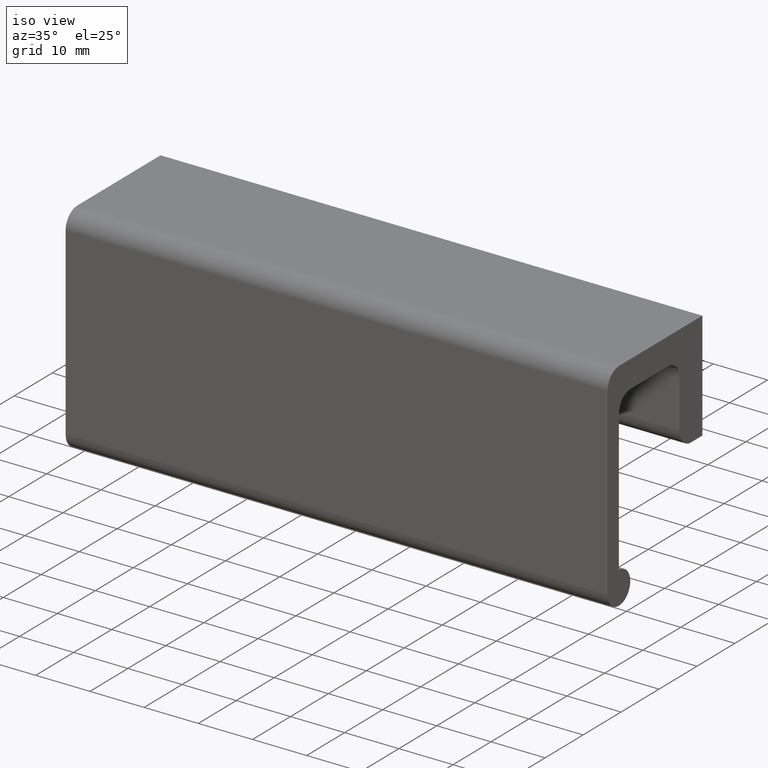
[diagram: clean part render]
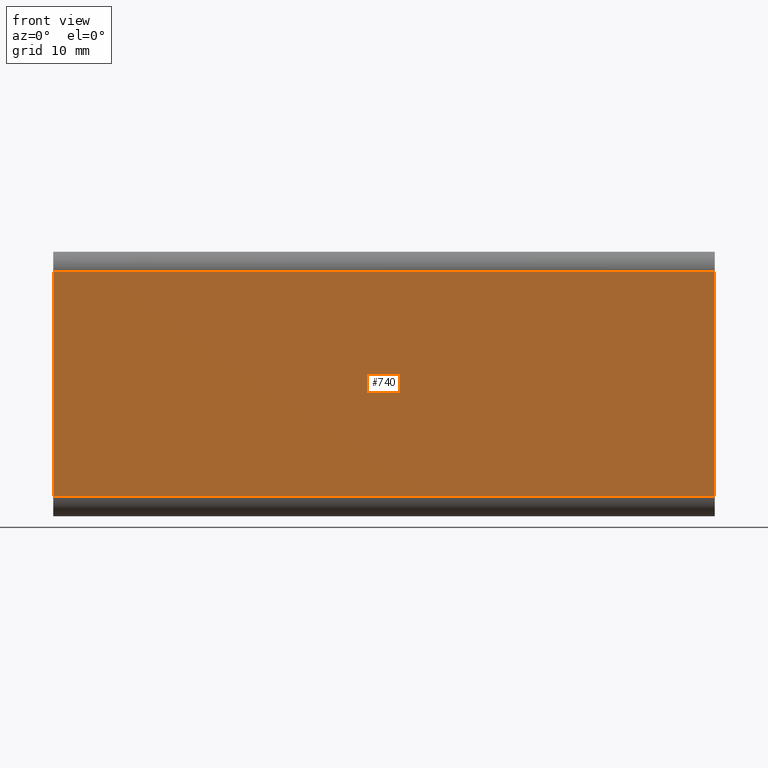
[diagram: tour spotlight — one face highlighted and labeled with its STEP entity id]
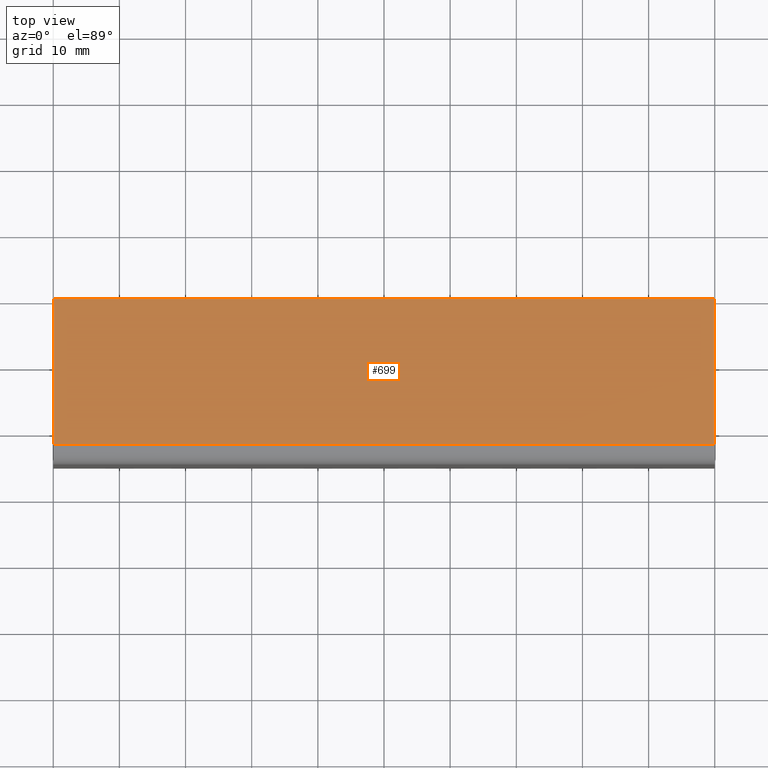
[diagram: tour spotlight — one face highlighted and labeled with its STEP entity id]
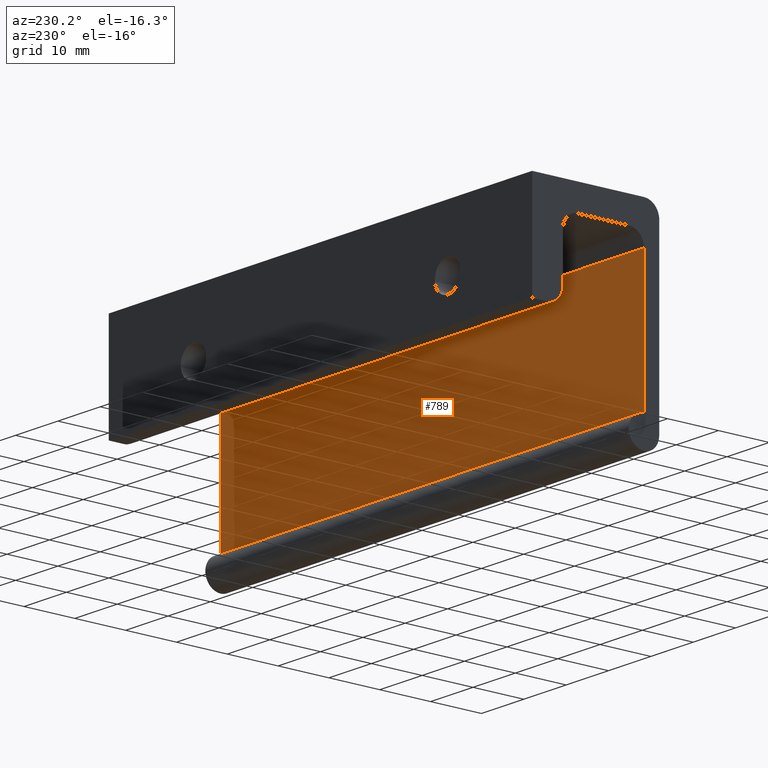
[diagram: tour spotlight — one face highlighted and labeled with its STEP entity id]
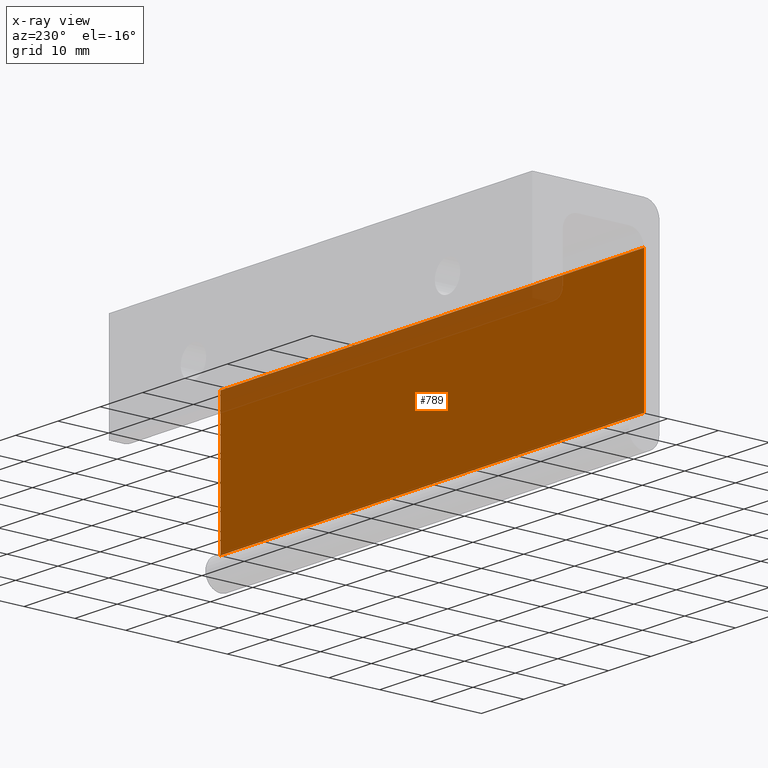
[diagram: x-ray of the same camera — body ghosted, this tour face saturated]
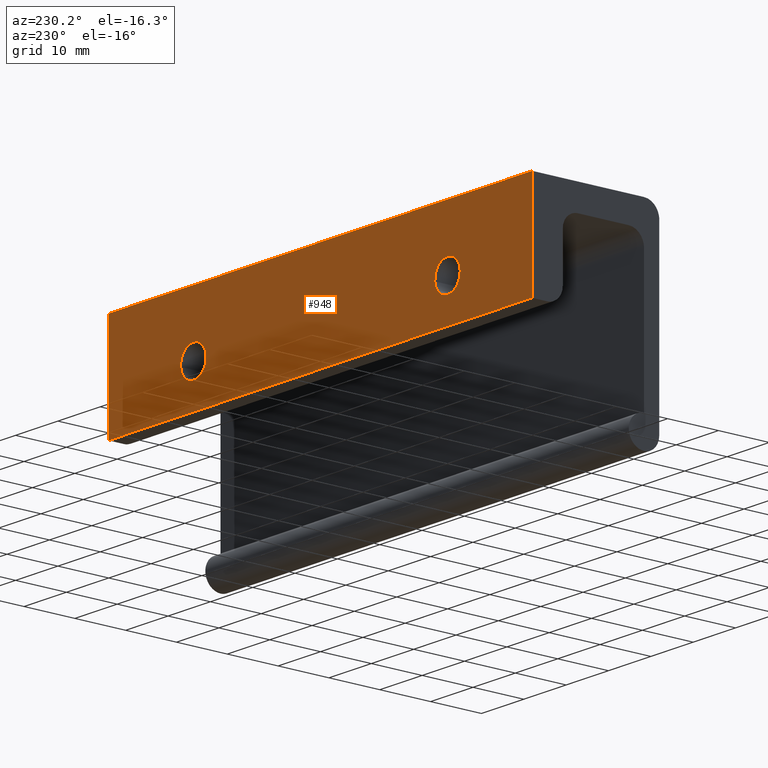
[diagram: tour spotlight — one face highlighted and labeled with its STEP entity id]
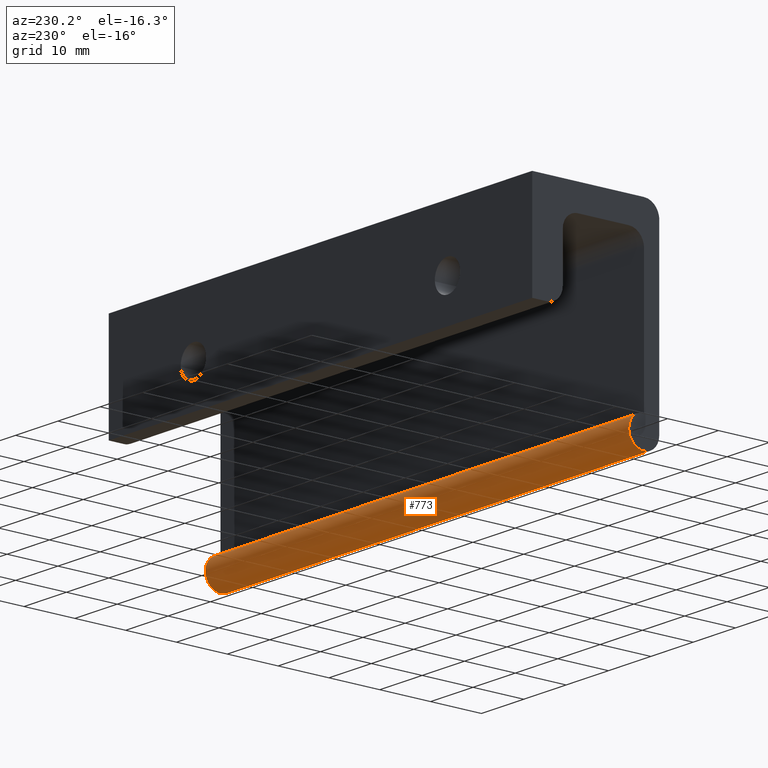
[diagram: tour spotlight — one face highlighted and labeled with its STEP entity id]
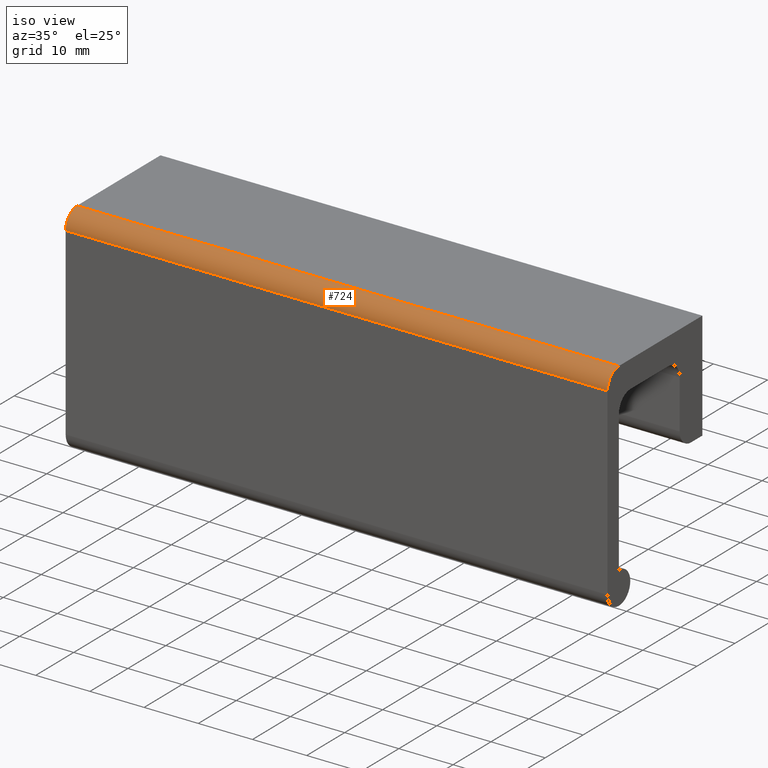
[diagram: tour spotlight — one face highlighted and labeled with its STEP entity id]
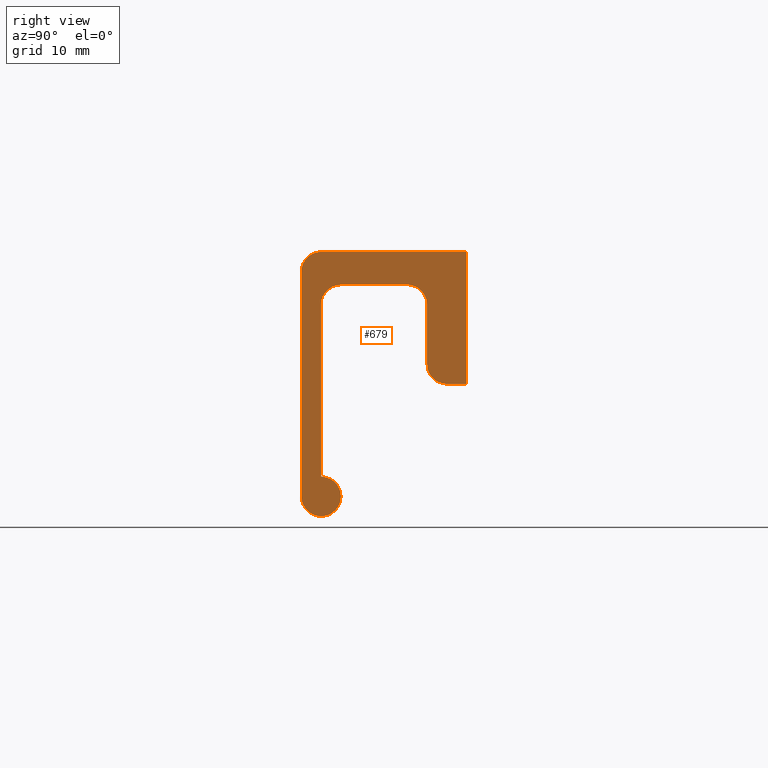
[diagram: tour spotlight — one face highlighted and labeled with its STEP entity id]
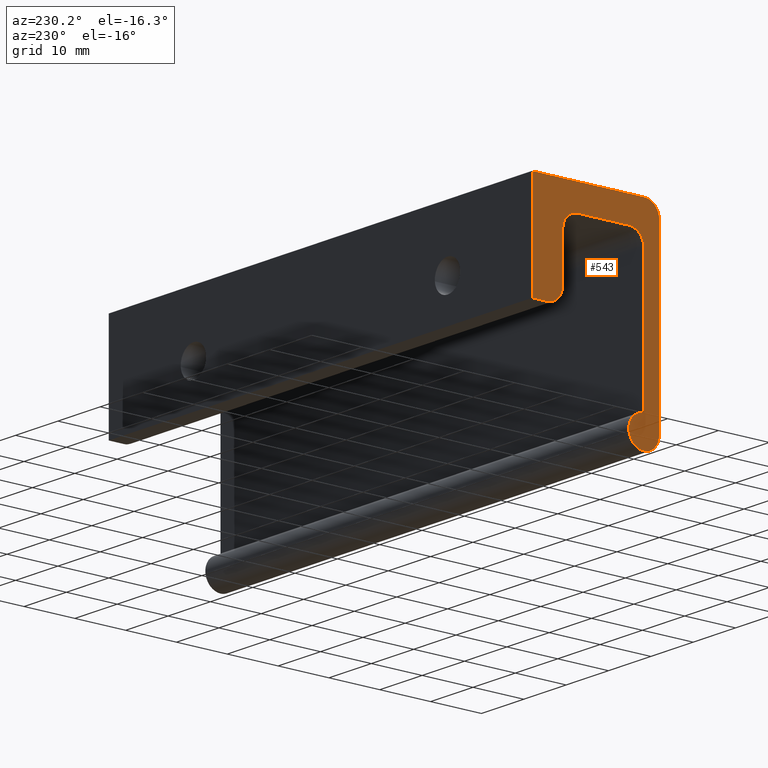
[diagram: tour spotlight — one face highlighted and labeled with its STEP entity id]
A machine part: a face-by-face anatomy tour. The part has 18 B-rep faces; the first image is the clean iso view, then the 8 largest visible faces are spotlighted one at a time (largest first), each with its STEP entity span.

Face 1 — front view, entity #740. In plain terms, the highlighted face is a freeform B-spline surface patch.
Definition (entity closure, byte-faithful):
#495=CARTESIAN_POINT('',(0.0,-25.0,-37.0));
#496=VERTEX_POINT('',#495);
#514=CARTESIAN_POINT('',(0.0,-25.0,-3.0));
#515=VERTEX_POINT('',#514);
#516=CARTESIAN_POINT('',(0.0,-25.0,-37.0));
#517=CARTESIAN_POINT('',(0.0,-25.0,-3.0));
#518=QUASI_UNIFORM_CURVE('',1,(#516,#517),.UNSPECIFIED.,.F.,.U.);
#519=EDGE_CURVE('',#496,#515,#518,.T.);
#565=CARTESIAN_POINT('',(100.0,-25.0,-3.0));
#566=VERTEX_POINT('',#565);
#580=CARTESIAN_POINT('',(100.0,-25.0,-37.0));
#581=VERTEX_POINT('',#580);
#582=CARTESIAN_POINT('',(100.0,-25.0,-37.0));
#583=CARTESIAN_POINT('',(100.0,-25.0,-3.0));
#584=QUASI_UNIFORM_CURVE('',1,(#582,#583),.UNSPECIFIED.,.F.,.U.);
#585=EDGE_CURVE('',#581,#566,#584,.T.);
#715=CARTESIAN_POINT('',(100.0,-25.0,-3.0));
#716=CARTESIAN_POINT('',(0.0,-25.0,-3.0));
#717=QUASI_UNIFORM_CURVE('',1,(#715,#716),.UNSPECIFIED.,.F.,.U.);
#718=EDGE_CURVE('',#566,#515,#717,.T.);
#725=CARTESIAN_POINT('',(-4.994999806180597,-25.0,-1.301700065898595));
#726=CARTESIAN_POINT('',(-4.994999806180597,-25.0,-38.698300846052483));
#727=CARTESIAN_POINT('',(104.995002488389600,-25.0,-1.301700065898595));
#728=CARTESIAN_POINT('',(104.995002488389600,-25.0,-38.698300846052483));
#729=B_SPLINE_SURFACE_WITH_KNOTS('',1,1,((#725,#727),(#726,#728)),.UNSPECIFIED.,.F.,.F.,.U.,(2,2),(2,2),(0.0,37.396600780153882),(0.0,109.990002294570200),.UNSPECIFIED.);
#730=ORIENTED_EDGE('',*,*,#519,.F.);
#731=CARTESIAN_POINT('',(100.0,-25.0,-37.0));
#732=CARTESIAN_POINT('',(0.0,-25.0,-37.0));
#733=QUASI_UNIFORM_CURVE('',1,(#731,#732),.UNSPECIFIED.,.F.,.U.);
#734=EDGE_CURVE('',#581,#496,#733,.T.);
#735=ORIENTED_EDGE('',*,*,#734,.F.);
#736=ORIENTED_EDGE('',*,*,#585,.T.);
#737=ORIENTED_EDGE('',*,*,#718,.T.);
#738=EDGE_LOOP('',(#730,#735,#736,#737));
#739=FACE_OUTER_BOUND('',#738,.T.);
#740=ADVANCED_FACE('',(#739),#729,.T.);

Face 2 — top view, entity #699. In plain terms, the highlighted face is a freeform B-spline surface patch.
Definition (entity closure, byte-faithful):
#413=CARTESIAN_POINT('',(0.0,0.0,0.0));
#414=VERTEX_POINT('',#413);
#521=CARTESIAN_POINT('',(0.0,-22.0,0.0));
#522=VERTEX_POINT('',#521);
#536=CARTESIAN_POINT('',(0.0,-22.0,0.0));
#537=CARTESIAN_POINT('',(0.0,0.0,0.0));
#538=QUASI_UNIFORM_CURVE('',1,(#536,#537),.UNSPECIFIED.,.F.,.U.);
#539=EDGE_CURVE('',#522,#414,#538,.T.);
#549=CARTESIAN_POINT('',(100.0,0.0,0.0));
#550=VERTEX_POINT('',#549);
#558=CARTESIAN_POINT('',(100.0,-22.0,0.0));
#559=VERTEX_POINT('',#558);
#560=CARTESIAN_POINT('',(100.0,-22.0,0.0));
#561=CARTESIAN_POINT('',(100.0,0.0,0.0));
#562=QUASI_UNIFORM_CURVE('',1,(#560,#561),.UNSPECIFIED.,.F.,.U.);
#563=EDGE_CURVE('',#559,#550,#562,.T.);
#680=CARTESIAN_POINT('',(-4.994999806180597,-23.098899957359730,0.0));
#681=CARTESIAN_POINT('',(104.995002488389600,-23.098899957359730,0.0));
#682=CARTESIAN_POINT('',(-4.994999806180597,1.098900547445714,0.0));
#683=CARTESIAN_POINT('',(104.995002488389600,1.098900547445714,0.0));
#684=B_SPLINE_SURFACE_WITH_KNOTS('',1,1,((#680,#682),(#681,#683)),.UNSPECIFIED.,.F.,.F.,.U.,(2,2),(2,2),(0.0,109.990002294570200),(0.0,24.197800504805439),.UNSPECIFIED.);
#685=ORIENTED_EDGE('',*,*,#539,.F.);
#686=CARTESIAN_POINT('',(100.0,-22.0,0.0));
#687=CARTESIAN_POINT('',(0.0,-22.0,0.0));
#688=QUASI_UNIFORM_CURVE('',1,(#686,#687),.UNSPECIFIED.,.F.,.U.);
#689=EDGE_CURVE('',#559,#522,#688,.T.);
#690=ORIENTED_EDGE('',*,*,#689,.F.);
#691=ORIENTED_EDGE('',*,*,#563,.T.);
#692=CARTESIAN_POINT('',(100.0,0.0,0.0));
#693=CARTESIAN_POINT('',(0.0,0.0,0.0));
#694=QUASI_UNIFORM_CURVE('',1,(#692,#693),.UNSPECIFIED.,.F.,.U.);
#695=EDGE_CURVE('',#550,#414,#694,.T.);
#696=ORIENTED_EDGE('',*,*,#695,.T.);
#697=EDGE_LOOP('',(#685,#690,#691,#696));
#698=FACE_OUTER_BOUND('',#697,.T.);
#699=ADVANCED_FACE('',(#698),#684,.T.);

Face 3 — auxiliary view, entity #789. An x-ray twin of the same camera follows (body ghosted, this face saturated) — the face is partly hidden behind the body. In plain terms, the highlighted face is a freeform B-spline surface patch.
Definition (entity closure, byte-faithful):
#473=CARTESIAN_POINT('',(0.0,-22.0,-8.0));
#474=VERTEX_POINT('',#473);
#488=CARTESIAN_POINT('',(0.0,-22.0,-34.0));
#489=VERTEX_POINT('',#488);
#490=CARTESIAN_POINT('',(0.0,-22.0,-8.0));
#491=CARTESIAN_POINT('',(0.0,-22.0,-34.0));
#492=QUASI_UNIFORM_CURVE('',1,(#490,#491),.UNSPECIFIED.,.F.,.U.);
#493=EDGE_CURVE('',#474,#489,#492,.T.);
#587=CARTESIAN_POINT('',(100.0,-22.0,-34.0));
#588=VERTEX_POINT('',#587);
#606=CARTESIAN_POINT('',(100.0,-22.0,-8.0));
#607=VERTEX_POINT('',#606);
#608=CARTESIAN_POINT('',(100.0,-22.0,-8.0));
#609=CARTESIAN_POINT('',(100.0,-22.0,-34.0));
#610=QUASI_UNIFORM_CURVE('',1,(#608,#609),.UNSPECIFIED.,.F.,.U.);
#611=EDGE_CURVE('',#607,#588,#610,.T.);
#764=CARTESIAN_POINT('',(100.0,-22.0,-34.0));
#765=CARTESIAN_POINT('',(0.0,-22.0,-34.0));
#766=QUASI_UNIFORM_CURVE('',1,(#764,#765),.UNSPECIFIED.,.F.,.U.);
#767=EDGE_CURVE('',#588,#489,#766,.T.);
#774=CARTESIAN_POINT('',(-4.994999806180597,-22.0,-35.298699949606963));
#775=CARTESIAN_POINT('',(-4.994999806180597,-22.0,-6.701299353018701));
#776=CARTESIAN_POINT('',(104.995002488389600,-22.0,-35.298699949606963));
#777=CARTESIAN_POINT('',(104.995002488389600,-22.0,-6.701299353018701));
#778=B_SPLINE_SURFACE_WITH_KNOTS('',1,1,((#774,#776),(#775,#777)),.UNSPECIFIED.,.F.,.F.,.U.,(2,2),(2,2),(0.0,28.597400596588258),(0.0,109.990002294570200),.UNSPECIFIED.);
#779=ORIENTED_EDGE('',*,*,#493,.F.);
#780=CARTESIAN_POINT('',(100.0,-22.0,-8.0));
#781=CARTESIAN_POINT('',(0.0,-22.0,-8.0));
#782=QUASI_UNIFORM_CURVE('',1,(#780,#781),.UNSPECIFIED.,.F.,.U.);
#783=EDGE_CURVE('',#607,#474,#782,.T.);
#784=ORIENTED_EDGE('',*,*,#783,.F.);
#785=ORIENTED_EDGE('',*,*,#611,.T.);
#786=ORIENTED_EDGE('',*,*,#767,.T.);
#787=EDGE_LOOP('',(#779,#784,#785,#786));
#788=FACE_OUTER_BOUND('',#787,.T.);
#789=ADVANCED_FACE('',(#788),#778,.T.);

Face 4 — auxiliary view, entity #948. In plain terms, the highlighted face is a freeform B-spline surface patch.
Definition (entity closure, byte-faithful):
#79=CARTESIAN_POINT('',(77.009247998837708,1.665335E-016,-11.764622712345099));
#80=VERTEX_POINT('',#79);
#86=CARTESIAN_POINT('',(80.0,0.0,-9.000000000000002));
#87=VERTEX_POINT('',#86);
#88=CARTESIAN_POINT('',(80.0,0.0,-9.000000000000002));
#89=CARTESIAN_POINT('',(77.226828525902263,0.0,-9.000000000000004));
#90=CARTESIAN_POINT('',(77.009247998837708,1.665335E-016,-11.764622712345096));
#98=(BOUNDED_CURVE()B_SPLINE_CURVE(2,(#88,#89,#90),.UNSPECIFIED.,.F.,.U.)B_SPLINE_CURVE_WITH_KNOTS((3,3),(0.0,0.236331300578731),.UNSPECIFIED.)CURVE()GEOMETRIC_REPRESENTATION_ITEM()RATIONAL_B_SPLINE_CURVE((1.0,0.723120658668504,0.969723356059047))REPRESENTATION_ITEM(''));
#99=EDGE_CURVE('',#87,#80,#98,.T.);
#101=CARTESIAN_POINT('',(82.990752001162292,1.665335E-016,-12.235377287654901));
#102=VERTEX_POINT('',#101);
#103=CARTESIAN_POINT('',(82.990752001162292,1.665335E-016,-12.235377287654906));
#104=CARTESIAN_POINT('',(83.0,0.0,-12.117870321496570));
#105=CARTESIAN_POINT('',(83.0,0.0,-12.0));
#106=CARTESIAN_POINT('',(83.0,0.0,-9.000000000000002));
#107=CARTESIAN_POINT('',(80.0,0.0,-9.000000000000002));
#115=(BOUNDED_CURVE()B_SPLINE_CURVE(2,(#103,#104,#105,#106,#107),.UNSPECIFIED.,.F.,.U.)B_SPLINE_CURVE_WITH_KNOTS((3,2,3),(0.736331300578731,0.750000000000000,1.0),.UNSPECIFIED.)CURVE()GEOMETRIC_REPRESENTATION_ITEM()RATIONAL_B_SPLINE_CURVE((0.969723356059047,0.983986122518044,1.0,0.707106781186548,1.0))REPRESENTATION_ITEM(''));
#116=EDGE_CURVE('',#102,#87,#115,.T.);
#192=CARTESIAN_POINT('',(80.0,0.0,-15.0));
#193=VERTEX_POINT('',#192);
#194=CARTESIAN_POINT('',(80.0,0.0,-15.0));
#195=CARTESIAN_POINT('',(82.773171474097779,0.0,-15.000000000000004));
#196=CARTESIAN_POINT('',(82.990752001162292,1.665335E-016,-12.235377287654902));
#204=(BOUNDED_CURVE()B_SPLINE_CURVE(2,(#194,#195,#196),.UNSPECIFIED.,.F.,.U.)B_SPLINE_CURVE_WITH_KNOTS((3,3),(0.500000000000000,0.736331300578732),.UNSPECIFIED.)CURVE()GEOMETRIC_REPRESENTATION_ITEM()RATIONAL_B_SPLINE_CURVE((1.0,0.723120658668503,0.969723356059048))REPRESENTATION_ITEM(''));
#205=EDGE_CURVE('',#193,#102,#204,.T.);
#207=CARTESIAN_POINT('',(77.009247998837708,1.665335E-016,-11.764622712345096));
#208=CARTESIAN_POINT('',(77.0,0.0,-11.882129678503441));
#209=CARTESIAN_POINT('',(77.0,0.0,-12.0));
#210=CARTESIAN_POINT('',(77.000000000000014,0.0,-14.999999999999995));
#211=CARTESIAN_POINT('',(80.0,0.0,-15.0));
#219=(BOUNDED_CURVE()B_SPLINE_CURVE(2,(#207,#208,#209,#210,#211),.UNSPECIFIED.,.F.,.U.)B_SPLINE_CURVE_WITH_KNOTS((3,2,3),(0.236331300578731,0.250000000000000,0.500000000000000),.UNSPECIFIED.)CURVE()GEOMETRIC_REPRESENTATION_ITEM()RATIONAL_B_SPLINE_CURVE((0.969723356059047,0.983986122518044,1.0,0.707106781186548,1.0))REPRESENTATION_ITEM(''));
#220=EDGE_CURVE('',#80,#193,#219,.T.);
#261=CARTESIAN_POINT('',(17.009247998837719,1.665335E-016,-11.764622712345099));
#262=VERTEX_POINT('',#261);
#268=CARTESIAN_POINT('',(20.0,0.0,-9.000000000000002));
#269=VERTEX_POINT('',#268);
#270=CARTESIAN_POINT('',(20.0,0.0,-9.000000000000002));
#271=CARTESIAN_POINT('',(17.226828525902228,0.0,-9.000000000000002));
#272=CARTESIAN_POINT('',(17.009247998837715,1.665335E-016,-11.764622712345096));
#280=(BOUNDED_CURVE()B_SPLINE_CURVE(2,(#270,#271,#272),.UNSPECIFIED.,.F.,.U.)B_SPLINE_CURVE_WITH_KNOTS((3,3),(0.0,0.236331300578731),.UNSPECIFIED.)CURVE()GEOMETRIC_REPRESENTATION_ITEM()RATIONAL_B_SPLINE_CURVE((1.0,0.723120658668504,0.969723356059047))REPRESENTATION_ITEM(''));
#281=EDGE_CURVE('',#269,#262,#280,.T.);
#283=CARTESIAN_POINT('',(22.990752001162289,1.665335E-016,-12.235377287654901));
#284=VERTEX_POINT('',#283);
#285=CARTESIAN_POINT('',(22.990752001162285,1.665335E-016,-12.235377287654906));
#286=CARTESIAN_POINT('',(23.000000000000007,0.0,-12.117870321496570));
#287=CARTESIAN_POINT('',(23.0,0.0,-12.0));
#288=CARTESIAN_POINT('',(22.999999999999993,0.0,-9.000000000000002));
#289=CARTESIAN_POINT('',(20.0,0.0,-9.000000000000002));
#297=(BOUNDED_CURVE()B_SPLINE_CURVE(2,(#285,#286,#287,#288,#289),.UNSPECIFIED.,.F.,.U.)B_SPLINE_CURVE_WITH_KNOTS((3,2,3),(0.736331300578731,0.750000000000000,1.0),.UNSPECIFIED.)CURVE()GEOMETRIC_REPRESENTATION_ITEM()RATIONAL_B_SPLINE_CURVE((0.969723356059047,0.983986122518044,1.0,0.707106781186548,1.0))REPRESENTATION_ITEM(''));
#298=EDGE_CURVE('',#284,#269,#297,.T.);
#374=CARTESIAN_POINT('',(20.0,0.0,-15.0));
#375=VERTEX_POINT('',#374);
#376=CARTESIAN_POINT('',(20.0,0.0,-15.0));
#377=CARTESIAN_POINT('',(22.773171474097772,0.0,-15.000000000000004));
#378=CARTESIAN_POINT('',(22.990752001162289,1.665335E-016,-12.235377287654902));
#386=(BOUNDED_CURVE()B_SPLINE_CURVE(2,(#376,#377,#378),.UNSPECIFIED.,.F.,.U.)B_SPLINE_CURVE_WITH_KNOTS((3,3),(0.500000000000000,0.736331300578732),.UNSPECIFIED.)CURVE()GEOMETRIC_REPRESENTATION_ITEM()RATIONAL_B_SPLINE_CURVE((1.0,0.723120658668503,0.969723356059048))REPRESENTATION_ITEM(''));
#387=EDGE_CURVE('',#375,#284,#386,.T.);
#389=CARTESIAN_POINT('',(17.009247998837715,1.665335E-016,-11.764622712345096));
#390=CARTESIAN_POINT('',(16.999999999999996,0.0,-11.882129678503441));
#391=CARTESIAN_POINT('',(17.0,0.0,-12.0));
#392=CARTESIAN_POINT('',(17.000000000000004,0.0,-14.999999999999995));
#393=CARTESIAN_POINT('',(20.0,0.0,-15.0));
#401=(BOUNDED_CURVE()B_SPLINE_CURVE(2,(#389,#390,#391,#392,#393),.UNSPECIFIED.,.F.,.U.)B_SPLINE_CURVE_WITH_KNOTS((3,2,3),(0.236331300578731,0.250000000000000,0.500000000000000),.UNSPECIFIED.)CURVE()GEOMETRIC_REPRESENTATION_ITEM()RATIONAL_B_SPLINE_CURVE((0.969723356059047,0.983986122518044,1.0,0.707106781186548,1.0))REPRESENTATION_ITEM(''));
#402=EDGE_CURVE('',#262,#375,#401,.T.);
#413=CARTESIAN_POINT('',(0.0,0.0,0.0));
#414=VERTEX_POINT('',#413);
#415=CARTESIAN_POINT('',(0.0,0.0,-20.0));
#416=VERTEX_POINT('',#415);
#417=CARTESIAN_POINT('',(0.0,0.0,0.0));
#418=CARTESIAN_POINT('',(0.0,0.0,-20.0));
#419=QUASI_UNIFORM_CURVE('',1,(#417,#418),.UNSPECIFIED.,.F.,.U.);
#420=EDGE_CURVE('',#414,#416,#419,.T.);
#549=CARTESIAN_POINT('',(100.0,0.0,0.0));
#550=VERTEX_POINT('',#549);
#551=CARTESIAN_POINT('',(100.0,0.0,-20.0));
#552=VERTEX_POINT('',#551);
#553=CARTESIAN_POINT('',(100.0,0.0,0.0));
#554=CARTESIAN_POINT('',(100.0,0.0,-20.0));
#555=QUASI_UNIFORM_CURVE('',1,(#553,#554),.UNSPECIFIED.,.F.,.U.);
#556=EDGE_CURVE('',#550,#552,#555,.T.);
#692=CARTESIAN_POINT('',(100.0,0.0,0.0));
#693=CARTESIAN_POINT('',(0.0,0.0,0.0));
#694=QUASI_UNIFORM_CURVE('',1,(#692,#693),.UNSPECIFIED.,.F.,.U.);
#695=EDGE_CURVE('',#550,#414,#694,.T.);
#891=CARTESIAN_POINT('',(100.0,0.0,-20.0));
#892=CARTESIAN_POINT('',(0.0,0.0,-20.0));
#893=QUASI_UNIFORM_CURVE('',1,(#891,#892),.UNSPECIFIED.,.F.,.U.);
#894=EDGE_CURVE('',#552,#416,#893,.T.);
#925=CARTESIAN_POINT('',(-4.994999806180597,0.0,-20.998999961236120));
#926=CARTESIAN_POINT('',(-4.994999806180597,0.0,0.999000497677922));
#927=CARTESIAN_POINT('',(104.995002488389600,0.0,-20.998999961236120));
#928=CARTESIAN_POINT('',(104.995002488389600,0.0,0.999000497677922));
#929=B_SPLINE_SURFACE_WITH_KNOTS('',1,1,((#925,#927),(#926,#928)),.UNSPECIFIED.,.F.,.F.,.U.,(2,2),(2,2),(0.0,21.998000458914039),(0.0,109.990002294570200),.UNSPECIFIED.);
#930=ORIENTED_EDGE('',*,*,#420,.F.);
#931=ORIENTED_EDGE('',*,*,#695,.F.);
#932=ORIENTED_EDGE('',*,*,#556,.T.);
#933=ORIENTED_EDGE('',*,*,#894,.T.);
#934=EDGE_LOOP('',(#930,#931,#932,#933));
#935=FACE_OUTER_BOUND('',#934,.T.);
#936=ORIENTED_EDGE('',*,*,#387,.T.);
#937=ORIENTED_EDGE('',*,*,#298,.T.);
#938=ORIENTED_EDGE('',*,*,#281,.T.);
#939=ORIENTED_EDGE('',*,*,#402,.T.);
#940=EDGE_LOOP('',(#936,#937,#938,#939));
#941=FACE_BOUND('',#940,.T.);
#942=ORIENTED_EDGE('',*,*,#205,.T.);
#943=ORIENTED_EDGE('',*,*,#116,.T.);
#944=ORIENTED_EDGE('',*,*,#99,.T.);
#945=ORIENTED_EDGE('',*,*,#220,.T.);
#946=EDGE_LOOP('',(#942,#943,#944,#945));
#947=FACE_BOUND('',#946,.T.);
#948=ADVANCED_FACE('',(#935,#941,#947),#929,.T.);

Face 5 — auxiliary view, entity #773. In plain terms, the highlighted face is a freeform B-spline surface patch.
Definition (entity closure, byte-faithful):
#488=CARTESIAN_POINT('',(0.0,-22.0,-34.0));
#489=VERTEX_POINT('',#488);
#495=CARTESIAN_POINT('',(0.0,-25.0,-37.0));
#496=VERTEX_POINT('',#495);
#497=CARTESIAN_POINT('',(0.0,-25.0,-37.0));
#498=CARTESIAN_POINT('',(0.0,-25.0,-39.999999999999993));
#499=CARTESIAN_POINT('',(0.0,-22.0,-40.0));
#500=CARTESIAN_POINT('',(0.0,-18.999999999999993,-39.999999999999993));
#501=CARTESIAN_POINT('',(0.0,-19.0,-37.0));
#502=CARTESIAN_POINT('',(0.0,-18.999999999999993,-33.999999999999993));
#503=CARTESIAN_POINT('',(0.0,-22.0,-33.999999999999993));
#511=(BOUNDED_CURVE()B_SPLINE_CURVE(2,(#497,#498,#499,#500,#501,#502,#503),.UNSPECIFIED.,.F.,.U.)B_SPLINE_CURVE_WITH_KNOTS((3,2,2,3),(0.0,0.333333333333333,0.666666666666667,1.0),.UNSPECIFIED.)CURVE()GEOMETRIC_REPRESENTATION_ITEM()RATIONAL_B_SPLINE_CURVE((1.0,0.707106781186548,1.0,0.707106781186548,1.0,0.707106781186548,1.0))REPRESENTATION_ITEM(''));
#512=EDGE_CURVE('',#496,#489,#511,.T.);
#580=CARTESIAN_POINT('',(100.0,-25.0,-37.0));
#581=VERTEX_POINT('',#580);
#587=CARTESIAN_POINT('',(100.0,-22.0,-34.0));
#588=VERTEX_POINT('',#587);
#589=CARTESIAN_POINT('',(100.0,-25.0,-37.0));
#590=CARTESIAN_POINT('',(100.0,-25.0,-39.999999999999993));
#591=CARTESIAN_POINT('',(100.0,-22.0,-40.0));
#592=CARTESIAN_POINT('',(100.0,-18.999999999999993,-39.999999999999993));
#593=CARTESIAN_POINT('',(100.0,-19.0,-37.0));
#594=CARTESIAN_POINT('',(100.0,-18.999999999999993,-33.999999999999993));
#595=CARTESIAN_POINT('',(100.0,-22.0,-33.999999999999993));
#603=(BOUNDED_CURVE()B_SPLINE_CURVE(2,(#589,#590,#591,#592,#593,#594,#595),.UNSPECIFIED.,.F.,.U.)B_SPLINE_CURVE_WITH_KNOTS((3,2,2,3),(0.0,0.333333333333333,0.666666666666667,1.0),.UNSPECIFIED.)CURVE()GEOMETRIC_REPRESENTATION_ITEM()RATIONAL_B_SPLINE_CURVE((1.0,0.707106781186548,1.0,0.707106781186548,1.0,0.707106781186548,1.0))REPRESENTATION_ITEM(''));
#604=EDGE_CURVE('',#581,#588,#603,.T.);
#731=CARTESIAN_POINT('',(100.0,-25.0,-37.0));
#732=CARTESIAN_POINT('',(0.0,-25.0,-37.0));
#733=QUASI_UNIFORM_CURVE('',1,(#731,#732),.UNSPECIFIED.,.F.,.U.);
#734=EDGE_CURVE('',#581,#496,#733,.T.);
#741=CARTESIAN_POINT('',(102.500000000000000,-24.998971974926668,-36.921469155076380));
#742=CARTESIAN_POINT('',(-2.562500000000000,-24.998971974926668,-36.921469155076380));
#743=CARTESIAN_POINT('',(102.500000000000010,-25.080293045412670,-40.026995545321313));
#744=CARTESIAN_POINT('',(-2.562500000000000,-25.080293045412670,-40.026995545321313));
#745=CARTESIAN_POINT('',(102.500000000000000,-21.973820393504891,-39.999885769192517));
#746=CARTESIAN_POINT('',(-2.562500000000000,-21.973820393504891,-39.999885769192517));
#747=CARTESIAN_POINT('',(102.500000000000010,-18.867347741597108,-39.972775993063713));
#748=CARTESIAN_POINT('',(-2.562500000000000,-18.867347741597108,-39.972775993063713));
#749=CARTESIAN_POINT('',(102.500000000000000,-19.002855335254431,-36.869141837904003));
#750=CARTESIAN_POINT('',(-2.562500000000000,-19.002855335254431,-36.869141837904003));
#751=CARTESIAN_POINT('',(102.500000000000010,-19.138362928911764,-33.765507682744300));
#752=CARTESIAN_POINT('',(-2.562500000000000,-19.138362928911764,-33.765507682744300));
#753=CARTESIAN_POINT('',(102.500000000000000,-22.235377287183528,-34.009247998800632));
#754=CARTESIAN_POINT('',(-2.562500000000000,-22.235377287183528,-34.009247998800632));
#762=(BOUNDED_SURFACE()B_SPLINE_SURFACE(1,2,((#741,#743,#745,#747,#749,#751,#753),(#742,#744,#746,#748,#750,#752,#754)),.UNSPECIFIED.,.F.,.F.,.U.)B_SPLINE_SURFACE_WITH_KNOTS((2,2),(3,2,2,3),(0.0,105.062500000000000),(0.0,5.093697794515248,10.187395589030499,15.281093383545750),.UNSPECIFIED.)GEOMETRIC_REPRESENTATION_ITEM()RATIONAL_B_SPLINE_SURFACE(((1.0,0.694658370458997,1.0,0.694658370458997,1.0,0.694658370458997,1.0),(1.0,0.694658370458997,1.0,0.694658370458997,1.0,0.694658370458997,1.0)))REPRESENTATION_ITEM('')SURFACE());
#763=ORIENTED_EDGE('',*,*,#512,.T.);
#764=CARTESIAN_POINT('',(100.0,-22.0,-34.0));
#765=CARTESIAN_POINT('',(0.0,-22.0,-34.0));
#766=QUASI_UNIFORM_CURVE('',1,(#764,#765),.UNSPECIFIED.,.F.,.U.);
#767=EDGE_CURVE('',#588,#489,#766,.T.);
#768=ORIENTED_EDGE('',*,*,#767,.F.);
#769=ORIENTED_EDGE('',*,*,#604,.F.);
#770=ORIENTED_EDGE('',*,*,#734,.T.);
#771=EDGE_LOOP('',(#763,#768,#769,#770));
#772=FACE_OUTER_BOUND('',#771,.T.);
#773=ADVANCED_FACE('',(#772),#762,.T.);

Face 6 — iso view, entity #724. In plain terms, the highlighted face is a freeform B-spline surface patch.
Definition (entity closure, byte-faithful):
#514=CARTESIAN_POINT('',(0.0,-25.0,-3.0));
#515=VERTEX_POINT('',#514);
#521=CARTESIAN_POINT('',(0.0,-22.0,0.0));
#522=VERTEX_POINT('',#521);
#523=CARTESIAN_POINT('',(0.0,-22.0,0.0));
#524=CARTESIAN_POINT('',(0.0,-25.0,0.0));
#525=CARTESIAN_POINT('',(0.0,-25.0,-3.0));
#533=(BOUNDED_CURVE()B_SPLINE_CURVE(2,(#523,#524,#525),.UNSPECIFIED.,.F.,.U.)CURVE()GEOMETRIC_REPRESENTATION_ITEM()QUASI_UNIFORM_CURVE()RATIONAL_B_SPLINE_CURVE((1.0,0.707106781186548,1.0))REPRESENTATION_ITEM(''));
#534=EDGE_CURVE('',#522,#515,#533,.T.);
#558=CARTESIAN_POINT('',(100.0,-22.0,0.0));
#559=VERTEX_POINT('',#558);
#565=CARTESIAN_POINT('',(100.0,-25.0,-3.0));
#566=VERTEX_POINT('',#565);
#567=CARTESIAN_POINT('',(100.0,-22.0,0.0));
#568=CARTESIAN_POINT('',(100.0,-25.0,0.0));
#569=CARTESIAN_POINT('',(100.0,-25.0,-3.0));
#577=(BOUNDED_CURVE()B_SPLINE_CURVE(2,(#567,#568,#569),.UNSPECIFIED.,.F.,.U.)CURVE()GEOMETRIC_REPRESENTATION_ITEM()QUASI_UNIFORM_CURVE()RATIONAL_B_SPLINE_CURVE((1.0,0.707106781186548,1.0))REPRESENTATION_ITEM(''));
#578=EDGE_CURVE('',#559,#566,#577,.T.);
#686=CARTESIAN_POINT('',(100.0,-22.0,0.0));
#687=CARTESIAN_POINT('',(0.0,-22.0,0.0));
#688=QUASI_UNIFORM_CURVE('',1,(#686,#687),.UNSPECIFIED.,.F.,.U.);
#689=EDGE_CURVE('',#559,#522,#688,.T.);
#700=CARTESIAN_POINT('',(102.500000000000000,-21.921469155076380,-0.001028025073329));
#701=CARTESIAN_POINT('',(-2.562500000000000,-21.921469155076380,-0.001028025073329));
#702=CARTESIAN_POINT('',(102.499999999999990,-25.224954401664167,0.085476780498783));
#703=CARTESIAN_POINT('',(-2.562500000000000,-25.224954401664167,0.085476780498783));
#704=CARTESIAN_POINT('',(102.500000000000040,-24.992573438142436,-3.210960226877957));
#705=CARTESIAN_POINT('',(-2.562500000000000,-24.992573438142436,-3.210960226877957));
#713=(BOUNDED_SURFACE()B_SPLINE_SURFACE(1,2,((#700,#702,#704),(#701,#703,#705)),.UNSPECIFIED.,.F.,.F.,.U.)B_SPLINE_SURFACE_WITH_KNOTS((2,2),(3,3),(0.0,105.062500000000000),(0.0,5.313427032265103),.UNSPECIFIED.)GEOMETRIC_REPRESENTATION_ITEM()RATIONAL_B_SPLINE_SURFACE(((1.0,0.670944223154768,0.996392648609106),(1.0,0.670944223154768,0.996392648609106)))REPRESENTATION_ITEM('')SURFACE());
#714=ORIENTED_EDGE('',*,*,#534,.T.);
#715=CARTESIAN_POINT('',(100.0,-25.0,-3.0));
#716=CARTESIAN_POINT('',(0.0,-25.0,-3.0));
#717=QUASI_UNIFORM_CURVE('',1,(#715,#716),.UNSPECIFIED.,.F.,.U.);
#718=EDGE_CURVE('',#566,#515,#717,.T.);
#719=ORIENTED_EDGE('',*,*,#718,.F.);
#720=ORIENTED_EDGE('',*,*,#578,.F.);
#721=ORIENTED_EDGE('',*,*,#689,.T.);
#722=EDGE_LOOP('',(#714,#719,#720,#721));
#723=FACE_OUTER_BOUND('',#722,.T.);
#724=ADVANCED_FACE('',(#723),#713,.T.);

Face 7 — right view, entity #679. In plain terms, the highlighted face is a freeform B-spline surface patch.
Definition (entity closure, byte-faithful):
#544=CARTESIAN_POINT('',(100.0,-26.248749951545150,1.997999890100308));
#545=CARTESIAN_POINT('',(100.0,1.248750622097401,1.997999890100308));
#546=CARTESIAN_POINT('',(100.0,-26.248749951545150,-41.998000314290628));
#547=CARTESIAN_POINT('',(100.0,1.248750622097401,-41.998000314290628));
#548=B_SPLINE_SURFACE_WITH_KNOTS('',1,1,((#544,#546),(#545,#547)),.UNSPECIFIED.,.F.,.F.,.U.,(2,2),(2,2),(0.0,27.497500573642551),(0.0,43.996000204390938),.UNSPECIFIED.);
#549=CARTESIAN_POINT('',(100.0,0.0,0.0));
#550=VERTEX_POINT('',#549);
#551=CARTESIAN_POINT('',(100.0,0.0,-20.0));
#552=VERTEX_POINT('',#551);
#553=CARTESIAN_POINT('',(100.0,0.0,0.0));
#554=CARTESIAN_POINT('',(100.0,0.0,-20.0));
#555=QUASI_UNIFORM_CURVE('',1,(#553,#554),.UNSPECIFIED.,.F.,.U.);
#556=EDGE_CURVE('',#550,#552,#555,.T.);
#557=ORIENTED_EDGE('',*,*,#556,.F.);
#558=CARTESIAN_POINT('',(100.0,-22.0,0.0));
#559=VERTEX_POINT('',#558);
#560=CARTESIAN_POINT('',(100.0,-22.0,0.0));
#561=CARTESIAN_POINT('',(100.0,0.0,0.0));
#562=QUASI_UNIFORM_CURVE('',1,(#560,#561),.UNSPECIFIED.,.F.,.U.);
#563=EDGE_CURVE('',#559,#550,#562,.T.);
#564=ORIENTED_EDGE('',*,*,#563,.F.);
#565=CARTESIAN_POINT('',(100.0,-25.0,-3.0));
#566=VERTEX_POINT('',#565);
#567=CARTESIAN_POINT('',(100.0,-22.0,0.0));
#568=CARTESIAN_POINT('',(100.0,-25.0,0.0));
#569=CARTESIAN_POINT('',(100.0,-25.0,-3.0));
#577=(BOUNDED_CURVE()B_SPLINE_CURVE(2,(#567,#568,#569),.UNSPECIFIED.,.F.,.U.)CURVE()GEOMETRIC_REPRESENTATION_ITEM()QUASI_UNIFORM_CURVE()RATIONAL_B_SPLINE_CURVE((1.0,0.707106781186548,1.0))REPRESENTATION_ITEM(''));
#578=EDGE_CURVE('',#559,#566,#577,.T.);
#579=ORIENTED_EDGE('',*,*,#578,.T.);
#580=CARTESIAN_POINT('',(100.0,-25.0,-37.0));
#581=VERTEX_POINT('',#580);
#582=CARTESIAN_POINT('',(100.0,-25.0,-37.0));
#583=CARTESIAN_POINT('',(100.0,-25.0,-3.0));
#584=QUASI_UNIFORM_CURVE('',1,(#582,#583),.UNSPECIFIED.,.F.,.U.);
#585=EDGE_CURVE('',#581,#566,#584,.T.);
#586=ORIENTED_EDGE('',*,*,#585,.F.);
#587=CARTESIAN_POINT('',(100.0,-22.0,-34.0));
#588=VERTEX_POINT('',#587);
#589=CARTESIAN_POINT('',(100.0,-25.0,-37.0));
#590=CARTESIAN_POINT('',(100.0,-25.0,-39.999999999999993));
#591=CARTESIAN_POINT('',(100.0,-22.0,-40.0));
#592=CARTESIAN_POINT('',(100.0,-18.999999999999993,-39.999999999999993));
#593=CARTESIAN_POINT('',(100.0,-19.0,-37.0));
#594=CARTESIAN_POINT('',(100.0,-18.999999999999993,-33.999999999999993));
#595=CARTESIAN_POINT('',(100.0,-22.0,-33.999999999999993));
#603=(BOUNDED_CURVE()B_SPLINE_CURVE(2,(#589,#590,#591,#592,#593,#594,#595),.UNSPECIFIED.,.F.,.U.)B_SPLINE_CURVE_WITH_KNOTS((3,2,2,3),(0.0,0.333333333333333,0.666666666666667,1.0),.UNSPECIFIED.)CURVE()GEOMETRIC_REPRESENTATION_ITEM()RATIONAL_B_SPLINE_CURVE((1.0,0.707106781186548,1.0,0.707106781186548,1.0,0.707106781186548,1.0))REPRESENTATION_ITEM(''));
#604=EDGE_CURVE('',#581,#588,#603,.T.);
#605=ORIENTED_EDGE('',*,*,#604,.T.);
#606=CARTESIAN_POINT('',(100.0,-22.0,-8.0));
#607=VERTEX_POINT('',#606);
#608=CARTESIAN_POINT('',(100.0,-22.0,-8.0));
#609=CARTESIAN_POINT('',(100.0,-22.0,-34.0));
#610=QUASI_UNIFORM_CURVE('',1,(#608,#609),.UNSPECIFIED.,.F.,.U.);
#611=EDGE_CURVE('',#607,#588,#610,.T.);
#612=ORIENTED_EDGE('',*,*,#611,.F.);
#613=CARTESIAN_POINT('',(100.0,-19.0,-5.0));
#614=VERTEX_POINT('',#613);
#615=CARTESIAN_POINT('',(100.0,-19.0,-5.0));
#616=CARTESIAN_POINT('',(100.0,-22.000000000000007,-5.000000000000001));
#617=CARTESIAN_POINT('',(100.0,-22.0,-8.0));
#625=(BOUNDED_CURVE()B_SPLINE_CURVE(2,(#615,#616,#617),.UNSPECIFIED.,.F.,.U.)CURVE()GEOMETRIC_REPRESENTATION_ITEM()QUASI_UNIFORM_CURVE()RATIONAL_B_SPLINE_CURVE((1.0,0.707106781186548,1.0))REPRESENTATION_ITEM(''));
#626=EDGE_CURVE('',#614,#607,#625,.T.);
#627=ORIENTED_EDGE('',*,*,#626,.F.);
#628=CARTESIAN_POINT('',(100.0,-9.0,-5.0));
#629=VERTEX_POINT('',#628);
#630=CARTESIAN_POINT('',(100.0,-9.0,-5.0));
#631=CARTESIAN_POINT('',(100.0,-19.0,-5.0));
#632=QUASI_UNIFORM_CURVE('',1,(#630,#631),.UNSPECIFIED.,.F.,.U.);
#633=EDGE_CURVE('',#629,#614,#632,.T.);
#634=ORIENTED_EDGE('',*,*,#633,.F.);
#635=CARTESIAN_POINT('',(100.0,-6.0,-8.0));
#636=VERTEX_POINT('',#635);
#637=CARTESIAN_POINT('',(100.0,-5.999999999999999,-8.0));
#638=CARTESIAN_POINT('',(100.0,-5.999999999999999,-5.000000000000001));
#639=CARTESIAN_POINT('',(100.0,-9.0,-5.0));
#647=(BOUNDED_CURVE()B_SPLINE_CURVE(2,(#637,#638,#639),.UNSPECIFIED.,.F.,.U.)CURVE()GEOMETRIC_REPRESENTATION_ITEM()QUASI_UNIFORM_CURVE()RATIONAL_B_SPLINE_CURVE((1.0,0.707106781186548,1.0))REPRESENTATION_ITEM(''));
#648=EDGE_CURVE('',#636,#629,#647,.T.);
#649=ORIENTED_EDGE('',*,*,#648,.F.);
#650=CARTESIAN_POINT('',(100.0,-6.0,-17.0));
#651=VERTEX_POINT('',#650);
#652=CARTESIAN_POINT('',(100.0,-6.0,-17.0));
#653=CARTESIAN_POINT('',(100.0,-6.0,-8.0));
#654=QUASI_UNIFORM_CURVE('',1,(#652,#653),.UNSPECIFIED.,.F.,.U.);
#655=EDGE_CURVE('',#651,#636,#654,.T.);
#656=ORIENTED_EDGE('',*,*,#655,.F.);
#657=CARTESIAN_POINT('',(100.0,-3.0,-20.0));
#658=VERTEX_POINT('',#657);
#659=CARTESIAN_POINT('',(100.0,-6.0,-17.0));
#660=CARTESIAN_POINT('',(100.0,-6.0,-19.999999999999996));
#661=CARTESIAN_POINT('',(100.0,-3.0,-20.0));
#669=(BOUNDED_CURVE()B_SPLINE_CURVE(2,(#659,#660,#661),.UNSPECIFIED.,.F.,.U.)CURVE()GEOMETRIC_REPRESENTATION_ITEM()QUASI_UNIFORM_CURVE()RATIONAL_B_SPLINE_CURVE((1.0,0.707106781186548,1.0))REPRESENTATION_ITEM(''));
#670=EDGE_CURVE('',#651,#658,#669,.T.);
#671=ORIENTED_EDGE('',*,*,#670,.T.);
#672=CARTESIAN_POINT('',(100.0,0.0,-20.0));
#673=CARTESIAN_POINT('',(100.0,-3.0,-20.0));
#674=QUASI_UNIFORM_CURVE('',1,(#672,#673),.UNSPECIFIED.,.F.,.U.);
#675=EDGE_CURVE('',#552,#658,#674,.T.);
#676=ORIENTED_EDGE('',*,*,#675,.F.);
#677=EDGE_LOOP('',(#557,#564,#579,#586,#605,#612,#627,#634,#649,#656,#671,#676));
#678=FACE_OUTER_BOUND('',#677,.T.);
#679=ADVANCED_FACE('',(#678),#548,.F.);

Face 8 — auxiliary view, entity #543. In plain terms, the highlighted face is a freeform B-spline surface patch.
Definition (entity closure, byte-faithful):
#408=CARTESIAN_POINT('',(0.0,-26.248749951545150,1.997999890100308));
#409=CARTESIAN_POINT('',(0.0,1.248750622097401,1.997999890100308));
#410=CARTESIAN_POINT('',(0.0,-26.248749951545150,-41.998000314290628));
#411=CARTESIAN_POINT('',(0.0,1.248750622097401,-41.998000314290628));
#412=B_SPLINE_SURFACE_WITH_KNOTS('',1,1,((#408,#410),(#409,#411)),.UNSPECIFIED.,.F.,.F.,.U.,(2,2),(2,2),(0.0,27.497500573642551),(0.0,43.996000204390938),.UNSPECIFIED.);
#413=CARTESIAN_POINT('',(0.0,0.0,0.0));
#414=VERTEX_POINT('',#413);
#415=CARTESIAN_POINT('',(0.0,0.0,-20.0));
#416=VERTEX_POINT('',#415);
#417=CARTESIAN_POINT('',(0.0,0.0,0.0));
#418=CARTESIAN_POINT('',(0.0,0.0,-20.0));
#419=QUASI_UNIFORM_CURVE('',1,(#417,#418),.UNSPECIFIED.,.F.,.U.);
#420=EDGE_CURVE('',#414,#416,#419,.T.);
#421=ORIENTED_EDGE('',*,*,#420,.T.);
#422=CARTESIAN_POINT('',(0.0,-3.0,-20.0));
#423=VERTEX_POINT('',#422);
#424=CARTESIAN_POINT('',(0.0,0.0,-20.0));
#425=CARTESIAN_POINT('',(0.0,-3.0,-20.0));
#426=QUASI_UNIFORM_CURVE('',1,(#424,#425),.UNSPECIFIED.,.F.,.U.);
#427=EDGE_CURVE('',#416,#423,#426,.T.);
#428=ORIENTED_EDGE('',*,*,#427,.T.);
#429=CARTESIAN_POINT('',(0.0,-6.0,-17.0));
#430=VERTEX_POINT('',#429);
#431=CARTESIAN_POINT('',(0.0,-6.0,-17.0));
#432=CARTESIAN_POINT('',(0.0,-6.0,-19.999999999999996));
#433=CARTESIAN_POINT('',(0.0,-3.0,-20.0));
#441=(BOUNDED_CURVE()B_SPLINE_CURVE(2,(#431,#432,#433),.UNSPECIFIED.,.F.,.U.)CURVE()GEOMETRIC_REPRESENTATION_ITEM()QUASI_UNIFORM_CURVE()RATIONAL_B_SPLINE_CURVE((1.0,0.707106781186548,1.0))REPRESENTATION_ITEM(''));
#442=EDGE_CURVE('',#430,#423,#441,.T.);
#443=ORIENTED_EDGE('',*,*,#442,.F.);
#444=CARTESIAN_POINT('',(0.0,-6.0,-8.0));
#445=VERTEX_POINT('',#444);
#446=CARTESIAN_POINT('',(0.0,-6.0,-17.0));
#447=CARTESIAN_POINT('',(0.0,-6.0,-8.0));
#448=QUASI_UNIFORM_CURVE('',1,(#446,#447),.UNSPECIFIED.,.F.,.U.);
#449=EDGE_CURVE('',#430,#445,#448,.T.);
#450=ORIENTED_EDGE('',*,*,#449,.T.);
#451=CARTESIAN_POINT('',(0.0,-9.0,-5.0));
#452=VERTEX_POINT('',#451);
#453=CARTESIAN_POINT('',(0.0,-5.999999999999999,-8.0));
#454=CARTESIAN_POINT('',(0.0,-5.999999999999999,-5.000000000000001));
#455=CARTESIAN_POINT('',(0.0,-9.0,-5.0));
#463=(BOUNDED_CURVE()B_SPLINE_CURVE(2,(#453,#454,#455),.UNSPECIFIED.,.F.,.U.)CURVE()GEOMETRIC_REPRESENTATION_ITEM()QUASI_UNIFORM_CURVE()RATIONAL_B_SPLINE_CURVE((1.0,0.707106781186548,1.0))REPRESENTATION_ITEM(''));
#464=EDGE_CURVE('',#445,#452,#463,.T.);
#465=ORIENTED_EDGE('',*,*,#464,.T.);
#466=CARTESIAN_POINT('',(0.0,-19.0,-5.0));
#467=VERTEX_POINT('',#466);
#468=CARTESIAN_POINT('',(0.0,-9.0,-5.0));
#469=CARTESIAN_POINT('',(0.0,-19.0,-5.0));
#470=QUASI_UNIFORM_CURVE('',1,(#468,#469),.UNSPECIFIED.,.F.,.U.);
#471=EDGE_CURVE('',#452,#467,#470,.T.);
#472=ORIENTED_EDGE('',*,*,#471,.T.);
#473=CARTESIAN_POINT('',(0.0,-22.0,-8.0));
#474=VERTEX_POINT('',#473);
#475=CARTESIAN_POINT('',(0.0,-19.0,-5.0));
#476=CARTESIAN_POINT('',(0.0,-22.000000000000007,-5.000000000000001));
#477=CARTESIAN_POINT('',(0.0,-22.0,-8.0));
#485=(BOUNDED_CURVE()B_SPLINE_CURVE(2,(#475,#476,#477),.UNSPECIFIED.,.F.,.U.)CURVE()GEOMETRIC_REPRESENTATION_ITEM()QUASI_UNIFORM_CURVE()RATIONAL_B_SPLINE_CURVE((1.0,0.707106781186548,1.0))REPRESENTATION_ITEM(''));
#486=EDGE_CURVE('',#467,#474,#485,.T.);
#487=ORIENTED_EDGE('',*,*,#486,.T.);
#488=CARTESIAN_POINT('',(0.0,-22.0,-34.0));
#489=VERTEX_POINT('',#488);
#490=CARTESIAN_POINT('',(0.0,-22.0,-8.0));
#491=CARTESIAN_POINT('',(0.0,-22.0,-34.0));
#492=QUASI_UNIFORM_CURVE('',1,(#490,#491),.UNSPECIFIED.,.F.,.U.);
#493=EDGE_CURVE('',#474,#489,#492,.T.);
#494=ORIENTED_EDGE('',*,*,#493,.T.);
#495=CARTESIAN_POINT('',(0.0,-25.0,-37.0));
#496=VERTEX_POINT('',#495);
#497=CARTESIAN_POINT('',(0.0,-25.0,-37.0));
#498=CARTESIAN_POINT('',(0.0,-25.0,-39.999999999999993));
#499=CARTESIAN_POINT('',(0.0,-22.0,-40.0));
#500=CARTESIAN_POINT('',(0.0,-18.999999999999993,-39.999999999999993));
#501=CARTESIAN_POINT('',(0.0,-19.0,-37.0));
#502=CARTESIAN_POINT('',(0.0,-18.999999999999993,-33.999999999999993));
#503=CARTESIAN_POINT('',(0.0,-22.0,-33.999999999999993));
#511=(BOUNDED_CURVE()B_SPLINE_CURVE(2,(#497,#498,#499,#500,#501,#502,#503),.UNSPECIFIED.,.F.,.U.)B_SPLINE_CURVE_WITH_KNOTS((3,2,2,3),(0.0,0.333333333333333,0.666666666666667,1.0),.UNSPECIFIED.)CURVE()GEOMETRIC_REPRESENTATION_ITEM()RATIONAL_B_SPLINE_CURVE((1.0,0.707106781186548,1.0,0.707106781186548,1.0,0.707106781186548,1.0))REPRESENTATION_ITEM(''));
#512=EDGE_CURVE('',#496,#489,#511,.T.);
#513=ORIENTED_EDGE('',*,*,#512,.F.);
#514=CARTESIAN_POINT('',(0.0,-25.0,-3.0));
#515=VERTEX_POINT('',#514);
#516=CARTESIAN_POINT('',(0.0,-25.0,-37.0));
#517=CARTESIAN_POINT('',(0.0,-25.0,-3.0));
#518=QUASI_UNIFORM_CURVE('',1,(#516,#517),.UNSPECIFIED.,.F.,.U.);
#519=EDGE_CURVE('',#496,#515,#518,.T.);
#520=ORIENTED_EDGE('',*,*,#519,.T.);
#521=CARTESIAN_POINT('',(0.0,-22.0,0.0));
#522=VERTEX_POINT('',#521);
#523=CARTESIAN_POINT('',(0.0,-22.0,0.0));
#524=CARTESIAN_POINT('',(0.0,-25.0,0.0));
#525=CARTESIAN_POINT('',(0.0,-25.0,-3.0));
#533=(BOUNDED_CURVE()B_SPLINE_CURVE(2,(#523,#524,#525),.UNSPECIFIED.,.F.,.U.)CURVE()GEOMETRIC_REPRESENTATION_ITEM()QUASI_UNIFORM_CURVE()RATIONAL_B_SPLINE_CURVE((1.0,0.707106781186548,1.0))REPRESENTATION_ITEM(''));
#534=EDGE_CURVE('',#522,#515,#533,.T.);
#535=ORIENTED_EDGE('',*,*,#534,.F.);
#536=CARTESIAN_POINT('',(0.0,-22.0,0.0));
#537=CARTESIAN_POINT('',(0.0,0.0,0.0));
#538=QUASI_UNIFORM_CURVE('',1,(#536,#537),.UNSPECIFIED.,.F.,.U.);
#539=EDGE_CURVE('',#522,#414,#538,.T.);
#540=ORIENTED_EDGE('',*,*,#539,.T.);
#541=EDGE_LOOP('',(#421,#428,#443,#450,#465,#472,#487,#494,#513,#520,#535,#540));
#542=FACE_OUTER_BOUND('',#541,.T.);
#543=ADVANCED_FACE('',(#542),#412,.T.);